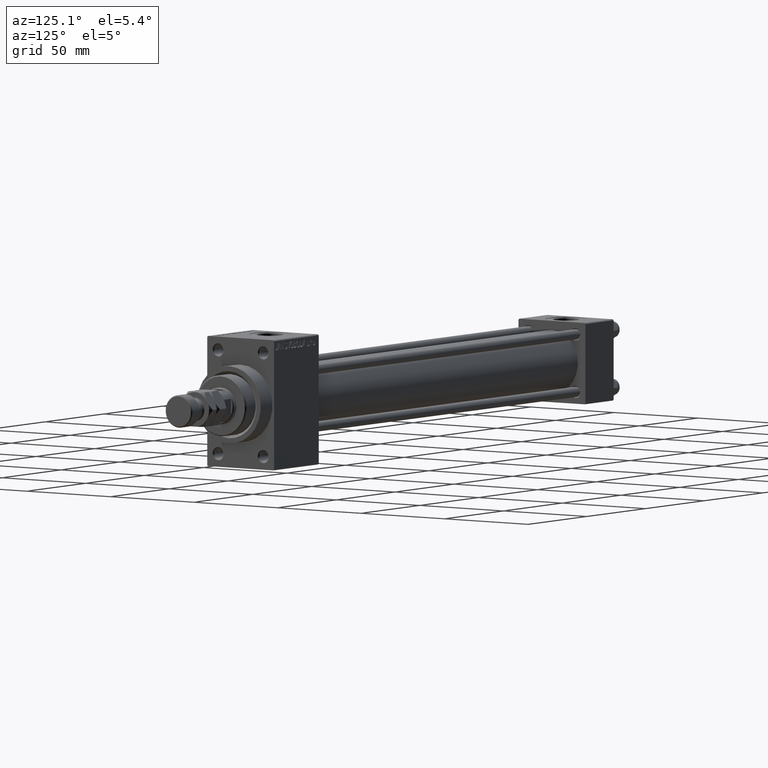
[diagram: clean part render]
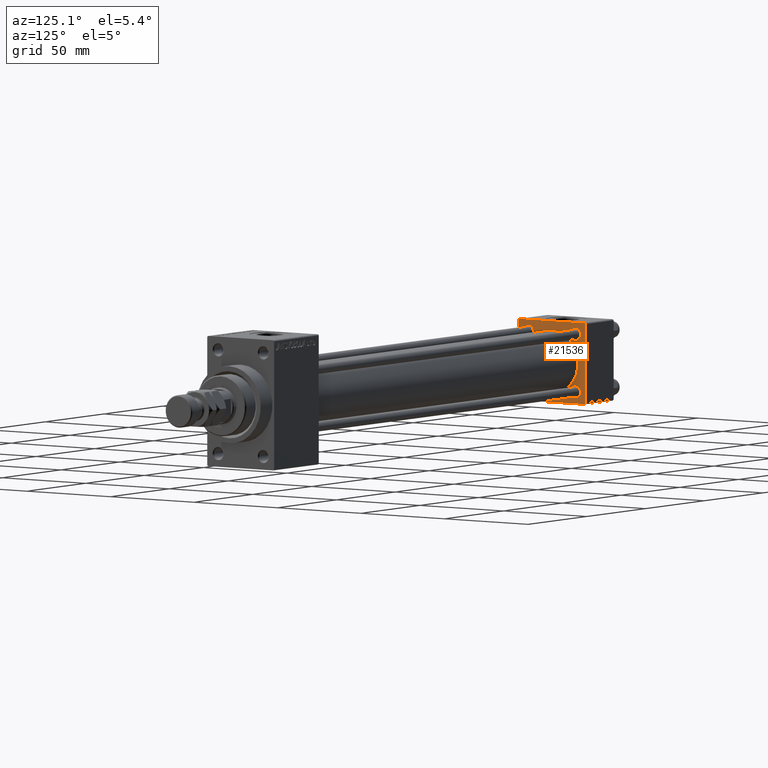
[diagram: same view with one face highlighted and labeled with its STEP entity id]
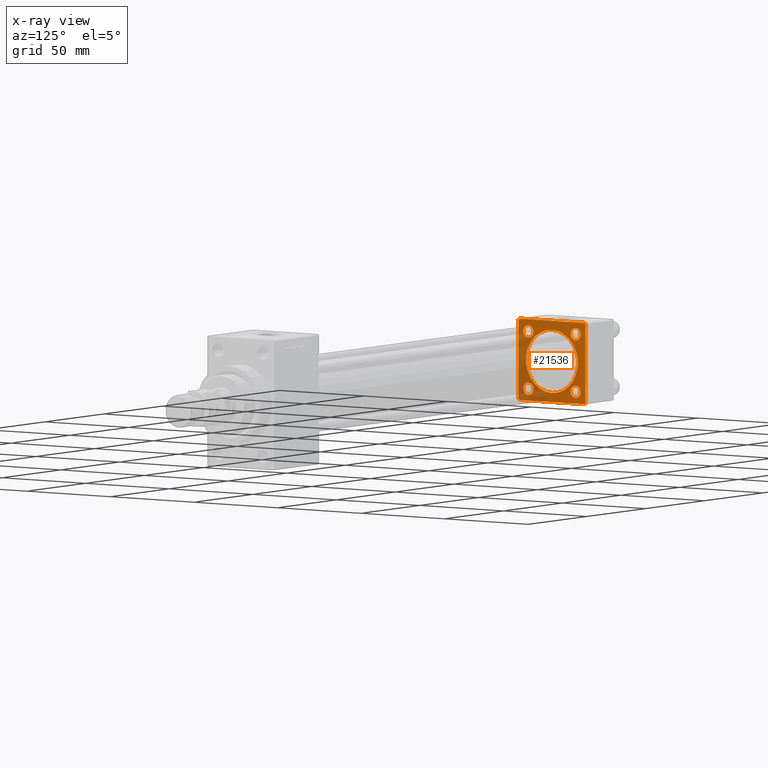
[diagram: x-ray of the same camera — body ghosted, the highlighted face saturated]
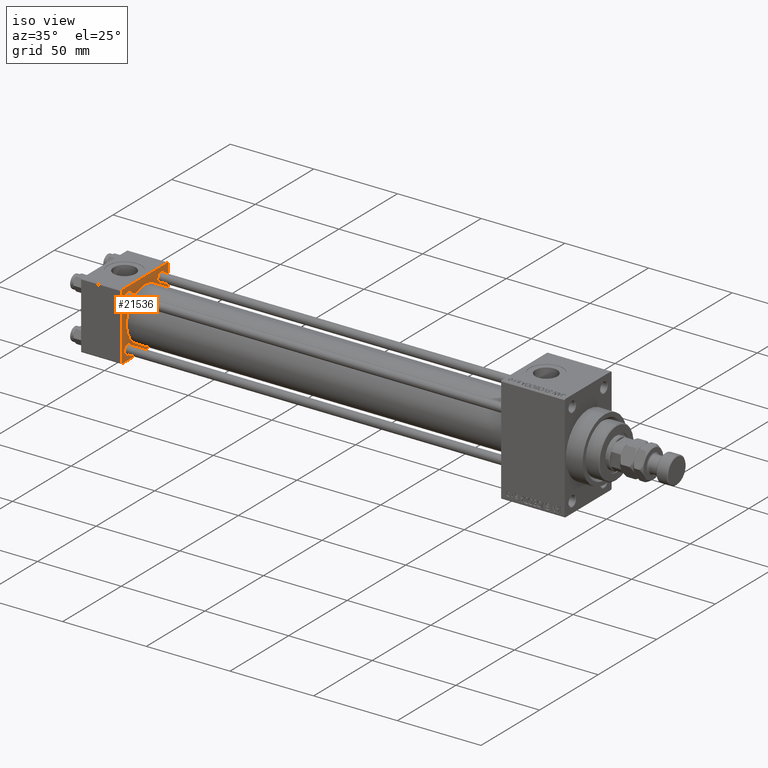
[diagram: same view with one face highlighted and labeled with its STEP entity id]
A machine part, auxiliary view. The second image highlights one B-rep face of the part: STEP entity #21536.
The next image is the same camera in x-ray: the body ghosted, the highlighted face saturated — about 33% of this face is hidden behind the body in this view.
A second angle (iso view) of the same face is appended — the face is thin or edge-on in the first view.
In plain terms, the highlighted planar face has unit normal (-1, 0, 0).
Its self-contained STEP definition (entity closure, byte-faithful):
#50 = ORIENTED_EDGE ( 'NONE', *, *, #7357, .T. ) ;
#96 = CARTESIAN_POINT ( 'NONE',  ( 24.00000000000000000, 14.14999999999999858, -17.15000000000003411 ) ) ;
#611 = AXIS2_PLACEMENT_3D ( 'NONE', #4657, #12772, #39382 ) ;
#687 = CARTESIAN_POINT ( 'NONE',  ( 24.00000000000000000, 20.00000000000000000, -19.50000000000002132 ) ) ;
#1271 = LINE ( 'NONE', #23419, #25809 ) ;
#1453 = VERTEX_POINT ( 'NONE', #7054 ) ;
#1558 = DIRECTION ( 'NONE',  ( 0.000000000000000000, 0.000000000000000000, -1.000000000000000000 ) ) ;
#1914 = CARTESIAN_POINT ( 'NONE',  ( 24.00000000000000000, 14.14999999999999858, 17.15000000000003411 ) ) ;
#2204 = AXIS2_PLACEMENT_3D ( 'NONE', #28248, #27762, #4841 ) ;
#2217 = LINE ( 'NONE', #39426, #29520 ) ;
#3127 = DIRECTION ( 'NONE',  ( 0.000000000000000000, 0.000000000000000000, 1.000000000000000000 ) ) ;
#3612 = VERTEX_POINT ( 'NONE', #15108 ) ;
#3958 = ORIENTED_EDGE ( 'NONE', *, *, #17589, .T. ) ;
#4132 = CARTESIAN_POINT ( 'NONE',  ( 24.00000000000000000, -14.14999999999999503, -14.15000000000000391 ) ) ;
#4334 = VERTEX_POINT ( 'NONE', #33244 ) ;
#4657 = CARTESIAN_POINT ( 'NONE',  ( 24.00000000000000000, -14.14999999999999503, 14.15000000000000391 ) ) ;
#4672 = CIRCLE ( 'NONE', #32211, 3.000000000000031974 ) ;
#4841 = DIRECTION ( 'NONE',  ( 0.000000000000000000, 0.000000000000000000, 1.000000000000000000 ) ) ;
#5658 = ORIENTED_EDGE ( 'NONE', *, *, #34264, .T. ) ;
#5667 = DIRECTION ( 'NONE',  ( 0.000000000000000000, 8.673617379884036705E-17, -1.000000000000000000 ) ) ;
#7054 = CARTESIAN_POINT ( 'NONE',  ( 24.00000000000000000, -20.00000000000000355, 19.49999999999998224 ) ) ;
#7117 = EDGE_LOOP ( 'NONE', ( #42780, #21541 ) ) ;
#7266 = AXIS2_PLACEMENT_3D ( 'NONE', #4132, #22849, #44581 ) ;
#7357 = EDGE_CURVE ( 'NONE', #1453, #29524, #2217, .T. ) ;
#7632 = LINE ( 'NONE', #41634, #25668 ) ;
#8792 = VECTOR ( 'NONE', #28014, 1000.000000000000000 ) ;
#9600 = VERTEX_POINT ( 'NONE', #12760 ) ;
#10407 = CARTESIAN_POINT ( 'NONE',  ( 23.99999999999999289, -2.602085213965210642E-15, 0.000000000000000000 ) ) ;
#10850 = CIRCLE ( 'NONE', #38394, 3.000000000000031974 ) ;
#10985 = LINE ( 'NONE', #26976, #26730 ) ;
#11539 = EDGE_CURVE ( 'NONE', #23732, #44453, #13767, .T. ) ;
#11575 = VECTOR ( 'NONE', #29382, 1000.000000000000000 ) ;
#12066 = CARTESIAN_POINT ( 'NONE',  ( 24.00000000000000000, -19.49999999999999289, 19.99999999999998934 ) ) ;
#12655 = LINE ( 'NONE', #31637, #14852 ) ;
#12748 = ORIENTED_EDGE ( 'NONE', *, *, #22462, .T. ) ;
#12760 = CARTESIAN_POINT ( 'NONE',  ( 23.99999999999999289, -2.602085213965210642E-15, 15.50000000000000000 ) ) ;
#12772 = DIRECTION ( 'NONE',  ( -1.000000000000000000, -0.000000000000000000, -0.000000000000000000 ) ) ;
#13569 = EDGE_CURVE ( 'NONE', #32039, #39237, #7632, .T. ) ;
#13577 = DIRECTION ( 'NONE',  ( -1.000000000000000000, -0.000000000000000000, -0.000000000000000000 ) ) ;
#13767 = CIRCLE ( 'NONE', #33481, 3.000000000000031974 ) ;
#14219 = DIRECTION ( 'NONE',  ( -0.000000000000000000, 0.000000000000000000, 1.000000000000000000 ) ) ;
#14583 = EDGE_LOOP ( 'NONE', ( #3958, #20438 ) ) ;
#14611 = CARTESIAN_POINT ( 'NONE',  ( 24.00000000000000000, 14.14999999999999858, -11.14999999999997016 ) ) ;
#14852 = VECTOR ( 'NONE', #26714, 1000.000000000000000 ) ;
#15108 = CARTESIAN_POINT ( 'NONE',  ( 24.00000000000000000, -14.14999999999999503, 17.15000000000000924 ) ) ;
#15634 = EDGE_CURVE ( 'NONE', #29524, #39417, #22204, .T. ) ;
#16065 = EDGE_CURVE ( 'NONE', #20903, #3612, #36790, .T. ) ;
#16261 = EDGE_CURVE ( 'NONE', #37591, #9600, #20231, .T. ) ;
#16875 = EDGE_CURVE ( 'NONE', #9600, #37591, #28950, .T. ) ;
#16963 = EDGE_CURVE ( 'NONE', #33733, #39417, #1271, .T. ) ;
#17589 = EDGE_CURVE ( 'NONE', #41960, #29926, #28189, .T. ) ;
#17665 = FACE_BOUND ( 'NONE', #7117, .T. ) ;
#17717 = EDGE_LOOP ( 'NONE', ( #34212, #24602 ) ) ;
#18328 = AXIS2_PLACEMENT_3D ( 'NONE', #47369, #13577, #28627 ) ;
#19910 = CIRCLE ( 'NONE', #18328, 3.000000000000004441 ) ;
#20231 = CIRCLE ( 'NONE', #47830, 15.50000000000000000 ) ;
#20438 = ORIENTED_EDGE ( 'NONE', *, *, #32916, .T. ) ;
#20640 = EDGE_CURVE ( 'NONE', #44453, #23732, #4672, .T. ) ;
#20789 = DIRECTION ( 'NONE',  ( 0.000000000000000000, 0.000000000000000000, 1.000000000000000000 ) ) ;
#20903 = VERTEX_POINT ( 'NONE', #35553 ) ;
#21536 = ADVANCED_FACE ( 'NONE', ( #17665, #25789, #21596, #29016, #40582, #40101 ), #25298, .F. ) ;
#21541 = ORIENTED_EDGE ( 'NONE', *, *, #45845, .T. ) ;
#21596 = FACE_BOUND ( 'NONE', #27066, .T. ) ;
#21830 = DIRECTION ( 'NONE',  ( -1.000000000000000000, -0.000000000000000000, -0.000000000000000000 ) ) ;
#21969 = DIRECTION ( 'NONE',  ( 0.000000000000000000, 0.000000000000000000, 1.000000000000000000 ) ) ;
#22075 = VERTEX_POINT ( 'NONE', #12066 ) ;
#22093 = DIRECTION ( 'NONE',  ( 0.000000000000000000, 0.000000000000000000, 1.000000000000000000 ) ) ;
#22126 = CARTESIAN_POINT ( 'NONE',  ( 24.00000000000000000, -14.14999999999999503, -17.15000000000000924 ) ) ;
#22204 = LINE ( 'NONE', #29144, #11575 ) ;
#22462 = EDGE_CURVE ( 'NONE', #22075, #1453, #10985, .T. ) ;
#22822 = DIRECTION ( 'NONE',  ( 1.000000000000000000, 0.000000000000000000, 0.000000000000000000 ) ) ;
#22844 = EDGE_CURVE ( 'NONE', #3612, #20903, #25059, .T. ) ;
#22849 = DIRECTION ( 'NONE',  ( -1.000000000000000000, -0.000000000000000000, -0.000000000000000000 ) ) ;
#22898 = ORIENTED_EDGE ( 'NONE', *, *, #22844, .T. ) ;
#23122 = CARTESIAN_POINT ( 'NONE',  ( 23.99999999999999289, -7.038826752868134786E-16, -15.50000000000000000 ) ) ;
#23397 = CARTESIAN_POINT ( 'NONE',  ( 24.00000000000000000, -20.00000000000000000, -19.49999999999999645 ) ) ;
#23419 = CARTESIAN_POINT ( 'NONE',  ( 24.00000000000000000, 20.00000000000000000, -20.00000000000000711 ) ) ;
#23732 = VERTEX_POINT ( 'NONE', #96 ) ;
#23842 = ORIENTED_EDGE ( 'NONE', *, *, #29278, .F. ) ;
#24602 = ORIENTED_EDGE ( 'NONE', *, *, #20640, .T. ) ;
#24814 = ORIENTED_EDGE ( 'NONE', *, *, #16963, .F. ) ;
#25059 = CIRCLE ( 'NONE', #35317, 3.000000000000004441 ) ;
#25298 = PLANE ( 'NONE',  #38547 ) ;
#25668 = VECTOR ( 'NONE', #30048, 999.9999999999998863 ) ;
#25789 = FACE_BOUND ( 'NONE', #17717, .T. ) ;
#25809 = VECTOR ( 'NONE', #38468, 1000.000000000000000 ) ;
#26017 = ORIENTED_EDGE ( 'NONE', *, *, #16875, .F. ) ;
#26714 = DIRECTION ( 'NONE',  ( 0.000000000000000000, -1.000000000000000000, -2.602085213965210149E-16 ) ) ;
#26730 = VECTOR ( 'NONE', #34131, 1000.000000000000114 ) ;
#26976 = CARTESIAN_POINT ( 'NONE',  ( 24.00000000000000000, -20.00000000000000355, 19.49999999999998224 ) ) ;
#27066 = EDGE_LOOP ( 'NONE', ( #35319, #22898 ) ) ;
#27762 = DIRECTION ( 'NONE',  ( -1.000000000000000000, -0.000000000000000000, -0.000000000000000000 ) ) ;
#28014 = DIRECTION ( 'NONE',  ( -0.000000000000000000, 0.7071067811865524577, 0.7071067811865426878 ) ) ;
#28189 = CIRCLE ( 'NONE', #2204, 3.000000000000031974 ) ;
#28248 = CARTESIAN_POINT ( 'NONE',  ( 24.00000000000000000, 14.14999999999999858, 14.15000000000000036 ) ) ;
#28384 = CARTESIAN_POINT ( 'NONE',  ( 24.00000000000000000, 20.00000000000000000, -19.50000000000002132 ) ) ;
#28627 = DIRECTION ( 'NONE',  ( 0.000000000000000000, 0.000000000000000000, 1.000000000000000000 ) ) ;
#28881 = DIRECTION ( 'NONE',  ( -1.000000000000000000, -0.000000000000000000, -0.000000000000000000 ) ) ;
#28950 = CIRCLE ( 'NONE', #32890, 15.50000000000000000 ) ;
#29016 = FACE_BOUND ( 'NONE', #14583, .T. ) ;
#29144 = CARTESIAN_POINT ( 'NONE',  ( 24.00000000000000000, -19.50000000000000711, -20.00000000000000000 ) ) ;
#29256 = CARTESIAN_POINT ( 'NONE',  ( 24.00000000000000000, 0.000000000000000000, 0.000000000000000000 ) ) ;
#29278 = EDGE_CURVE ( 'NONE', #32039, #44717, #31848, .T. ) ;
#29280 = CIRCLE ( 'NONE', #7266, 3.000000000000004441 ) ;
#29382 = DIRECTION ( 'NONE',  ( 0.000000000000000000, 0.7071067811865401342, -0.7071067811865549002 ) ) ;
#29520 = VECTOR ( 'NONE', #5667, 1000.000000000000000 ) ;
#29524 = VERTEX_POINT ( 'NONE', #23397 ) ;
#29926 = VERTEX_POINT ( 'NONE', #1914 ) ;
#30048 = DIRECTION ( 'NONE',  ( 0.000000000000000000, -0.7071067811865425767, 0.7071067811865525687 ) ) ;
#31637 = CARTESIAN_POINT ( 'NONE',  ( 24.00000000000000000, 20.00000000000000000, 20.00000000000000000 ) ) ;
#31820 = CARTESIAN_POINT ( 'NONE',  ( 24.00000000000000000, 19.50000000000000000, 20.00000000000000000 ) ) ;
#31848 = LINE ( 'NONE', #46898, #42343 ) ;
#32039 = VERTEX_POINT ( 'NONE', #45348 ) ;
#32211 = AXIS2_PLACEMENT_3D ( 'NONE', #43975, #42331, #20789 ) ;
#32692 = VERTEX_POINT ( 'NONE', #22126 ) ;
#32890 = AXIS2_PLACEMENT_3D ( 'NONE', #10407, #47895, #21969 ) ;
#32916 = EDGE_CURVE ( 'NONE', #29926, #41960, #10850, .T. ) ;
#33244 = CARTESIAN_POINT ( 'NONE',  ( 24.00000000000000000, -14.14999999999999503, -11.15000000000000036 ) ) ;
#33481 = AXIS2_PLACEMENT_3D ( 'NONE', #44396, #28881, #44154 ) ;
#33733 = VERTEX_POINT ( 'NONE', #43374 ) ;
#34131 = DIRECTION ( 'NONE',  ( -0.000000000000000000, -0.7071067811865500152, -0.7071067811865451302 ) ) ;
#34212 = ORIENTED_EDGE ( 'NONE', *, *, #11539, .T. ) ;
#34239 = CARTESIAN_POINT ( 'NONE',  ( 24.00000000000000000, -19.50000000000000711, -20.00000000000000000 ) ) ;
#34264 = EDGE_CURVE ( 'NONE', #39237, #22075, #12655, .T. ) ;
#34520 = EDGE_LOOP ( 'NONE', ( #24814, #36946, #23842, #47049, #5658, #12748, #50, #34758 ) ) ;
#34758 = ORIENTED_EDGE ( 'NONE', *, *, #15634, .T. ) ;
#35317 = AXIS2_PLACEMENT_3D ( 'NONE', #43112, #35472, #39162 ) ;
#35319 = ORIENTED_EDGE ( 'NONE', *, *, #16065, .T. ) ;
#35472 = DIRECTION ( 'NONE',  ( -1.000000000000000000, -0.000000000000000000, -0.000000000000000000 ) ) ;
#35553 = CARTESIAN_POINT ( 'NONE',  ( 24.00000000000000000, -14.14999999999999503, 11.15000000000000036 ) ) ;
#36645 = DIRECTION ( 'NONE',  ( -1.000000000000000000, 0.000000000000000000, -0.000000000000000000 ) ) ;
#36790 = CIRCLE ( 'NONE', #611, 3.000000000000004441 ) ;
#36946 = ORIENTED_EDGE ( 'NONE', *, *, #40850, .T. ) ;
#37591 = VERTEX_POINT ( 'NONE', #23122 ) ;
#37873 = CARTESIAN_POINT ( 'NONE',  ( 23.99999999999999289, -2.602085213965210642E-15, 0.000000000000000000 ) ) ;
#38394 = AXIS2_PLACEMENT_3D ( 'NONE', #48480, #21830, #3127 ) ;
#38468 = DIRECTION ( 'NONE',  ( 0.000000000000000000, -1.000000000000000000, 1.734723475976807094E-16 ) ) ;
#38547 = AXIS2_PLACEMENT_3D ( 'NONE', #29256, #36645, #14219 ) ;
#38869 = EDGE_LOOP ( 'NONE', ( #26017, #41654 ) ) ;
#39162 = DIRECTION ( 'NONE',  ( 0.000000000000000000, 0.000000000000000000, 1.000000000000000000 ) ) ;
#39237 = VERTEX_POINT ( 'NONE', #31820 ) ;
#39382 = DIRECTION ( 'NONE',  ( 0.000000000000000000, 0.000000000000000000, 1.000000000000000000 ) ) ;
#39417 = VERTEX_POINT ( 'NONE', #34239 ) ;
#39426 = CARTESIAN_POINT ( 'NONE',  ( 24.00000000000000000, -20.00000000000000355, 19.99999999999998934 ) ) ;
#40101 = FACE_OUTER_BOUND ( 'NONE', #34520, .T. ) ;
#40582 = FACE_BOUND ( 'NONE', #38869, .T. ) ;
#40850 = EDGE_CURVE ( 'NONE', #33733, #44717, #45783, .T. ) ;
#41634 = CARTESIAN_POINT ( 'NONE',  ( 24.00000000000000000, 19.50000000000000000, 20.00000000000000000 ) ) ;
#41654 = ORIENTED_EDGE ( 'NONE', *, *, #16261, .F. ) ;
#41960 = VERTEX_POINT ( 'NONE', #48336 ) ;
#42331 = DIRECTION ( 'NONE',  ( -1.000000000000000000, -0.000000000000000000, -0.000000000000000000 ) ) ;
#42343 = VECTOR ( 'NONE', #1558, 1000.000000000000000 ) ;
#42780 = ORIENTED_EDGE ( 'NONE', *, *, #44801, .T. ) ;
#43112 = CARTESIAN_POINT ( 'NONE',  ( 24.00000000000000000, -14.14999999999999503, 14.15000000000000391 ) ) ;
#43374 = CARTESIAN_POINT ( 'NONE',  ( 24.00000000000000000, 19.50000000000000711, -20.00000000000000711 ) ) ;
#43975 = CARTESIAN_POINT ( 'NONE',  ( 24.00000000000000000, 14.14999999999999858, -14.15000000000000036 ) ) ;
#44154 = DIRECTION ( 'NONE',  ( 0.000000000000000000, 0.000000000000000000, 1.000000000000000000 ) ) ;
#44396 = CARTESIAN_POINT ( 'NONE',  ( 24.00000000000000000, 14.14999999999999858, -14.15000000000000036 ) ) ;
#44453 = VERTEX_POINT ( 'NONE', #14611 ) ;
#44581 = DIRECTION ( 'NONE',  ( 0.000000000000000000, 0.000000000000000000, 1.000000000000000000 ) ) ;
#44717 = VERTEX_POINT ( 'NONE', #28384 ) ;
#44801 = EDGE_CURVE ( 'NONE', #32692, #4334, #19910, .T. ) ;
#45348 = CARTESIAN_POINT ( 'NONE',  ( 24.00000000000000000, 20.00000000000000000, 19.49999999999999289 ) ) ;
#45783 = LINE ( 'NONE', #687, #8792 ) ;
#45845 = EDGE_CURVE ( 'NONE', #4334, #32692, #29280, .T. ) ;
#46898 = CARTESIAN_POINT ( 'NONE',  ( 24.00000000000000000, 20.00000000000000000, 20.00000000000000000 ) ) ;
#47049 = ORIENTED_EDGE ( 'NONE', *, *, #13569, .T. ) ;
#47369 = CARTESIAN_POINT ( 'NONE',  ( 24.00000000000000000, -14.14999999999999503, -14.15000000000000391 ) ) ;
#47830 = AXIS2_PLACEMENT_3D ( 'NONE', #37873, #22822, #22093 ) ;
#47895 = DIRECTION ( 'NONE',  ( 1.000000000000000000, 0.000000000000000000, 0.000000000000000000 ) ) ;
#48336 = CARTESIAN_POINT ( 'NONE',  ( 24.00000000000000000, 14.14999999999999858, 11.14999999999997016 ) ) ;
#48480 = CARTESIAN_POINT ( 'NONE',  ( 24.00000000000000000, 14.14999999999999858, 14.15000000000000036 ) ) ;